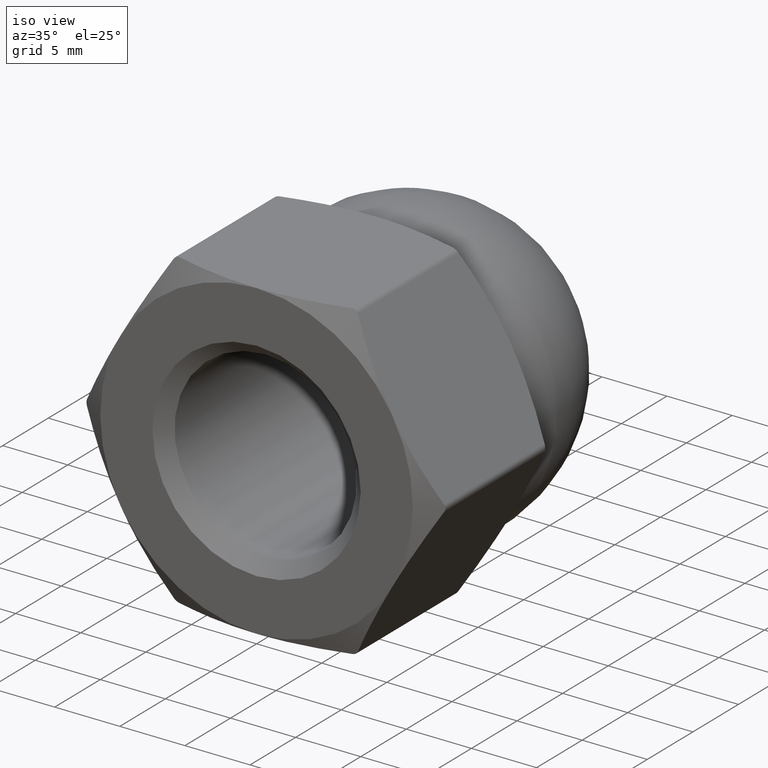
[diagram: clean part render]
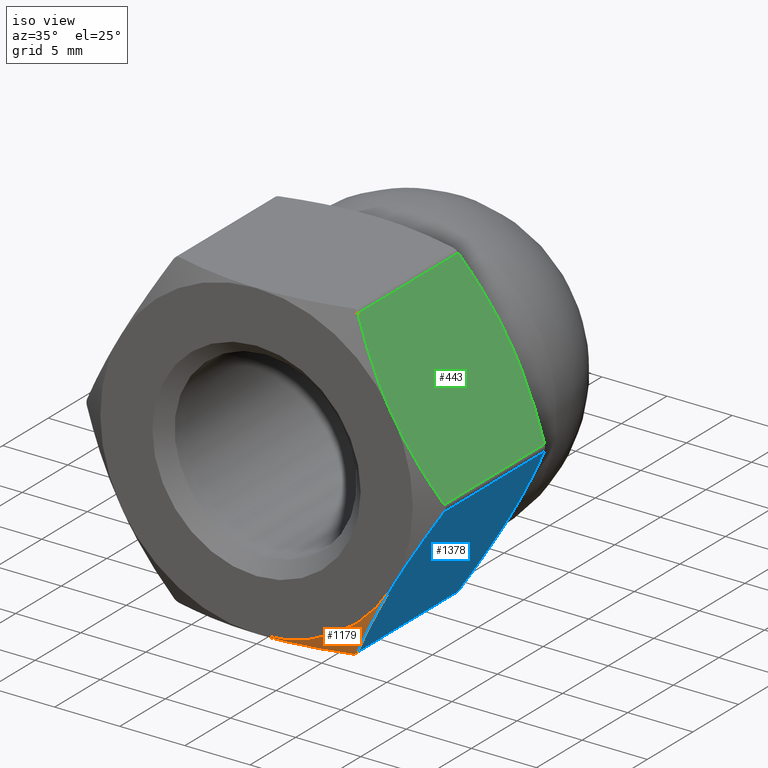
[diagram: same view with three faces highlighted in distinct colors, each labeled with its STEP entity id]
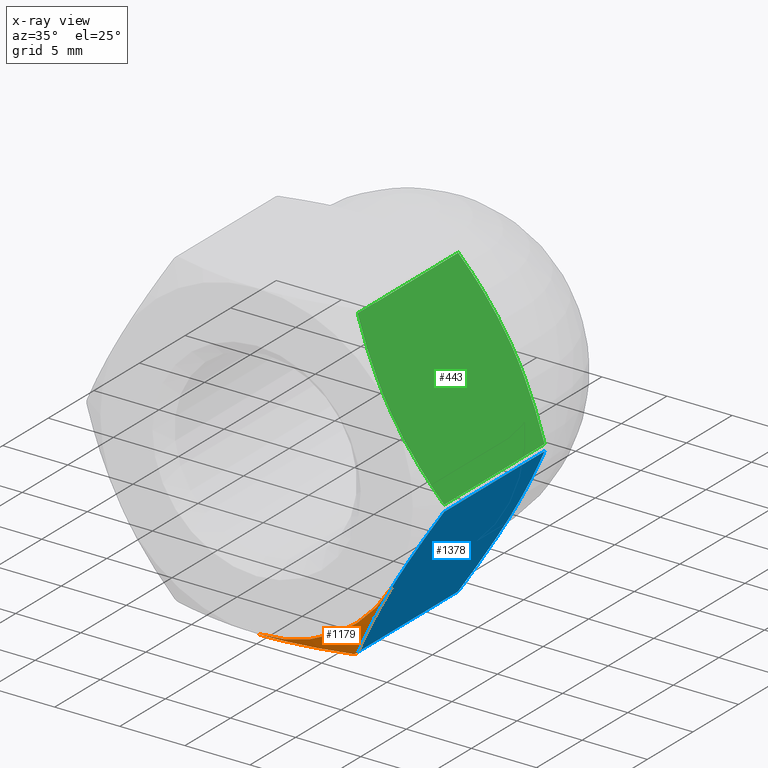
[diagram: x-ray of the same camera — body ghosted, the three highlighted faces saturated]
A machine part, iso view with three faces highlighted in distinct colors.
The next image is the same camera in x-ray (body ghosted, the three faces saturated) — at least one of them is partly hidden behind the body in this view.
Their STEP definitions:

[orange] entity #1179 — the highlighted conical surface has half-angle 60 deg.
#12 = CARTESIAN_POINT ( 'NONE',  ( 5.564852187614549800, 0.6893936322554055100, -12.00000000000000500 ) ) ;
#78 = CIRCLE ( 'NONE', #233, 12.00000000000000200 ) ;
#83 = CARTESIAN_POINT ( 'NONE',  ( 7.615867869546742800, 0.6860455640991240900, -10.80892990621369200 ) ) ;
#130 = CARTESIAN_POINT ( 'NONE',  ( 7.072540797572896700, 0.9897791165376161900, -11.75000000000002100 ) ) ;
#193 = CARTESIAN_POINT ( 'NONE',  ( 7.029609111663672700, 1.013779013001466800, -11.82435986124937700 ) ) ;
#194 = CARTESIAN_POINT ( 'NONE',  ( 7.072540797572896700, 0.9897791165376161900, -11.75000000000002100 ) ) ;
#230 = CARTESIAN_POINT ( 'NONE',  ( 4.476170215682657300, 0.4405454564966949100, -12.00000000000000200 ) ) ;
#233 = AXIS2_PLACEMENT_3D ( 'NONE', #584, #1329, #1203 ) ;
#235 = DIRECTION ( 'NONE',  ( -0.0000000000000000000, 1.000000000000000000, -0.0000000000000000000 ) ) ;
#272 = B_SPLINE_CURVE_WITH_KNOTS ( 'NONE', 3,
 ( #194, #83, #1140, #927, #299, #513 ),
 .UNSPECIFIED., .F., .F.,
 ( 4, 2, 4 ),
 ( 0.0002976420579480877700, 0.003654043546377617200, 0.007010445034807147300 ),
 .UNSPECIFIED. ) ;
#285 = CARTESIAN_POINT ( 'NONE',  ( 6.725359445022282200, 1.013770062314893500, -12.00000000000000200 ) ) ;
#299 = CARTESIAN_POINT ( 'NONE',  ( 9.827162648512390000, -1.008646833590420800E-014, -6.978854998533403600 ) ) ;
#320 = CARTESIAN_POINT ( 'NONE',  ( 2.250940326994609600, 0.1134534228778148600, -12.00000000000000000 ) ) ;
#340 = ORIENTED_EDGE ( 'NONE', *, *, #408, .T. ) ;
#380 = CARTESIAN_POINT ( 'NONE',  ( 10.39230484541326400, 0.0000000000000000000, -6.000000000000004400 ) ) ;
#395 = ORIENTED_EDGE ( 'NONE', *, *, #705, .F. ) ;
#399 = CARTESIAN_POINT ( 'NONE',  ( 6.639528095680694800, 0.9897791165376106400, -12.00000000000000000 ) ) ;
#408 = EDGE_CURVE ( 'NONE', #769, #1208, #539, .T. ) ;
#477 = ORIENTED_EDGE ( 'NONE', *, *, #761, .T. ) ;
#513 = CARTESIAN_POINT ( 'NONE',  ( 10.39230484541326400, 0.0000000000000000000, -6.000000000000004400 ) ) ;
#516 = VERTEX_POINT ( 'NONE', #130 ) ;
#518 = B_SPLINE_CURVE_WITH_KNOTS ( 'NONE', 3,
 ( #399, #285, #604, #1031, #193, #1034 ),
 .UNSPECIFIED., .F., .F.,
 ( 4, 2, 4 ),
 ( 3.529906531158615100E-018, 0.0002638430375139575900, 0.0005276860750279117000 ),
 .UNSPECIFIED. ) ;
#539 = B_SPLINE_CURVE_WITH_KNOTS ( 'NONE', 3,
 ( #648, #751, #1164, #320, #737, #230, #12, #1158 ),
 .UNSPECIFIED., .F., .F.,
 ( 4, 2, 2, 4 ),
 ( 0.01936970057594182200, 0.02104774807343688700, 0.02272579557093195500, 0.02608189056592208300 ),
 .UNSPECIFIED. ) ;
#584 = CARTESIAN_POINT ( 'NONE',  ( 0.0000000000000000000, 0.0000000000000000000, 0.0000000000000000000 ) ) ;
#604 = CARTESIAN_POINT ( 'NONE',  ( 6.812782701786536800, 1.027094147785106800, -11.97722948395740000 ) ) ;
#630 = VERTEX_POINT ( 'NONE', #380 ) ;
#648 = CARTESIAN_POINT ( 'NONE',  ( -1.502314598737160000E-015, 0.0000000000000000000, -12.00000000000000200 ) ) ;
#705 = EDGE_CURVE ( 'NONE', #769, #630, #78, .T. ) ;
#737 = CARTESIAN_POINT ( 'NONE',  ( 2.812232842606247700, 0.1810271902809779100, -12.00000000000000200 ) ) ;
#751 = CARTESIAN_POINT ( 'NONE',  ( 0.5605972413833048000, -1.554023113895890100E-015, -12.00000000000000200 ) ) ;
#758 = CARTESIAN_POINT ( 'NONE',  ( 0.0000000000000000000, 1.071796769724475000, 0.0000000000000000000 ) ) ;
#761 = EDGE_CURVE ( 'NONE', #1208, #516, #518, .T. ) ;
#769 = VERTEX_POINT ( 'NONE', #890 ) ;
#841 = CONICAL_SURFACE ( 'NONE', #1018, 13.85640646055101900, 1.047197551196603800 ) ;
#864 = DIRECTION ( 'NONE',  ( 0.0000000000000000000, 0.0000000000000000000, -1.000000000000000000 ) ) ;
#869 = CARTESIAN_POINT ( 'NONE',  ( 6.639528095680694800, 0.9897791165376106400, -12.00000000000000000 ) ) ;
#876 = EDGE_LOOP ( 'NONE', ( #340, #477, #1293, #395 ) ) ;
#890 = CARTESIAN_POINT ( 'NONE',  ( -1.502314598737160000E-015, 0.0000000000000000000, -12.00000000000000200 ) ) ;
#927 = CARTESIAN_POINT ( 'NONE',  ( 9.268740651451430800, 0.09356582542160188400, -7.946070269507060000 ) ) ;
#1006 = FACE_OUTER_BOUND ( 'NONE', #876, .T. ) ;
#1018 = AXIS2_PLACEMENT_3D ( 'NONE', #758, #235, #864 ) ;
#1031 = CARTESIAN_POINT ( 'NONE',  ( 6.965490637025080600, 1.027182766975820400, -11.88924742842495300 ) ) ;
#1034 = CARTESIAN_POINT ( 'NONE',  ( 7.072540797572896700, 0.9897791165376161900, -11.75000000000002100 ) ) ;
#1140 = CARTESIAN_POINT ( 'NONE',  ( 8.163129901979239400, 0.4370987489728677700, -9.861044260987201300 ) ) ;
#1158 = CARTESIAN_POINT ( 'NONE',  ( 6.639528095680694800, 0.9897791165376106400, -12.00000000000000000 ) ) ;
#1164 = CARTESIAN_POINT ( 'NONE',  ( 1.122912357192196000, 0.02279154430987167700, -12.00000000000000000 ) ) ;
#1179 = ADVANCED_FACE ( 'NONE', ( #1006 ), #841, .T. ) ;
#1203 = DIRECTION ( 'NONE',  ( 0.0000000000000000000, 0.0000000000000000000, -1.000000000000000000 ) ) ;
#1208 = VERTEX_POINT ( 'NONE', #869 ) ;
#1293 = ORIENTED_EDGE ( 'NONE', *, *, #1366, .T. ) ;
#1329 = DIRECTION ( 'NONE',  ( 0.0000000000000000000, -1.000000000000000000, 0.0000000000000000000 ) ) ;
#1366 = EDGE_CURVE ( 'NONE', #516, #630, #272, .T. ) ;

[blue] entity #1378 — the highlighted planar face has unit normal (-0.866, 0, 0.5).
#30 = ORIENTED_EDGE ( 'NONE', *, *, #657, .T. ) ;
#38 = CARTESIAN_POINT ( 'NONE',  ( 10.39230484541326400, 13.00000000000000000, -6.000000000000004400 ) ) ;
#43 = VECTOR ( 'NONE', #899, 1000.000000000000000 ) ;
#48 = CARTESIAN_POINT ( 'NONE',  ( 10.95744704231412900, 13.00000000000000900, -5.021145001466601700 ) ) ;
#56 = CARTESIAN_POINT ( 'NONE',  ( 8.990347189129828100, 12.82002802009278000, -8.428261890743083700 ) ) ;
#60 = CARTESIAN_POINT ( 'NONE',  ( 13.71206889325361000, 13.00000000000000000, -0.2500000000000005000 ) ) ;
#83 = CARTESIAN_POINT ( 'NONE',  ( 7.615867869546742800, 0.6860455640991240900, -10.80892990621369200 ) ) ;
#88 = CARTESIAN_POINT ( 'NONE',  ( 10.39230484541326400, 0.0000000000000000000, -6.000000000000004400 ) ) ;
#92 = CARTESIAN_POINT ( 'NONE',  ( 10.95658457648177900, 0.02321187332249741200, -5.022638836108027000 ) ) ;
#115 = EDGE_CURVE ( 'NONE', #750, #911, #370, .T. ) ;
#130 = CARTESIAN_POINT ( 'NONE',  ( 7.072540797572896700, 0.9897791165376161900, -11.75000000000002100 ) ) ;
#162 = CARTESIAN_POINT ( 'NONE',  ( 10.11082040635886900, 13.00000000000001100, -6.487545349982230600 ) ) ;
#163 = CARTESIAN_POINT ( 'NONE',  ( 7.072540797572910000, 12.01022088346239000, -11.74999999999999800 ) ) ;
#171 = EDGE_LOOP ( 'NONE', ( #1254, #30, #363, #1096, #913, #1039 ) ) ;
#180 = CARTESIAN_POINT ( 'NONE',  ( 8.161051184807723400, 12.56206301313893200, -9.864644704742834900 ) ) ;
#189 = EDGE_CURVE ( 'NONE', #911, #617, #774, .T. ) ;
#194 = CARTESIAN_POINT ( 'NONE',  ( 7.072540797572896700, 0.9897791165376161900, -11.75000000000002100 ) ) ;
#214 = CARTESIAN_POINT ( 'NONE',  ( 13.17005630627445700, 0.6867803944023982400, -1.188793338989742300 ) ) ;
#262 = CARTESIAN_POINT ( 'NONE',  ( 11.51586903937508000, 12.90643417457839200, -4.053929730492941800 ) ) ;
#272 = B_SPLINE_CURVE_WITH_KNOTS ( 'NONE', 3,
 ( #194, #83, #1140, #927, #299, #513 ),
 .UNSPECIFIED., .F., .F.,
 ( 4, 2, 4 ),
 ( 0.0002976420579480877700, 0.003654043546377617200, 0.007010445034807147300 ),
 .UNSPECIFIED. ) ;
#289 = EDGE_CURVE ( 'NONE', #750, #1065, #461, .T. ) ;
#297 = CARTESIAN_POINT ( 'NONE',  ( 7.072540797572910000, 12.01022088346239000, -11.74999999999999800 ) ) ;
#299 = CARTESIAN_POINT ( 'NONE',  ( 9.827162648512390000, -1.008646833590420800E-014, -6.978854998533403600 ) ) ;
#301 = FACE_OUTER_BOUND ( 'NONE', #171, .T. ) ;
#303 = DIRECTION ( 'NONE',  ( 0.5000000000000002200, 0.0000000000000000000, 0.8660254037844384900 ) ) ;
#325 = CARTESIAN_POINT ( 'NONE',  ( 10.67378928446761500, -1.040579975701907700E-014, -5.512454650017829700 ) ) ;
#339 = LINE ( 'NONE', #489, #43 ) ;
#363 = ORIENTED_EDGE ( 'NONE', *, *, #189, .F. ) ;
#369 = CARTESIAN_POINT ( 'NONE',  ( 13.71206889325362300, 12.01022088346238100, -0.2499999999999792900 ) ) ;
#370 = B_SPLINE_CURVE_WITH_KNOTS ( 'NONE', 3,
 ( #369, #1314, #882, #262, #48, #487 ),
 .UNSPECIFIED., .F., .F.,
 ( 4, 2, 4 ),
 ( 0.0002976420579480840800, 0.003654043546377615100, 0.007010445034807147300 ),
 .UNSPECIFIED. ) ;
#380 = CARTESIAN_POINT ( 'NONE',  ( 10.39230484541326400, 0.0000000000000000000, -6.000000000000004400 ) ) ;
#403 = B_SPLINE_CURVE_WITH_KNOTS ( 'NONE', 3,
 ( #88, #325, #92, #624, #1141, #1040, #214, #1162 ),
 .UNSPECIFIED., .F., .F.,
 ( 4, 2, 2, 4 ),
 ( 0.007010445034807147300, 0.008682192066603335700, 0.01035393909839952400, 0.01369743316199190100 ),
 .UNSPECIFIED. ) ;
#461 = LINE ( 'NONE', #60, #860 ) ;
#462 = CARTESIAN_POINT ( 'NONE',  ( 13.71206889325324400, 0.9897791165374056900, -0.2500000000006350500 ) ) ;
#487 = CARTESIAN_POINT ( 'NONE',  ( 10.39230484541326400, 13.00000000000000000, -6.000000000000004400 ) ) ;
#489 = CARTESIAN_POINT ( 'NONE',  ( 7.072540797572910900, 13.00000000000000000, -11.74999999999999800 ) ) ;
#513 = CARTESIAN_POINT ( 'NONE',  ( 10.39230484541326400, 0.0000000000000000000, -6.000000000000004400 ) ) ;
#516 = VERTEX_POINT ( 'NONE', #130 ) ;
#610 = DIRECTION ( 'NONE',  ( -0.8660254037844386000, 0.0000000000000000000, 0.5000000000000003300 ) ) ;
#617 = VERTEX_POINT ( 'NONE', #163 ) ;
#624 = CARTESIAN_POINT ( 'NONE',  ( 11.51623569666494300, 0.1132396048635532400, -4.053294661437945500 ) ) ;
#630 = VERTEX_POINT ( 'NONE', #380 ) ;
#657 = EDGE_CURVE ( 'NONE', #516, #617, #339, .T. ) ;
#692 = CARTESIAN_POINT ( 'NONE',  ( 13.71206889325362300, 12.01022088346238100, -0.2499999999999792900 ) ) ;
#695 = CARTESIAN_POINT ( 'NONE',  ( 7.614553384551759200, 12.31321960559746000, -10.81120666101079300 ) ) ;
#750 = VERTEX_POINT ( 'NONE', #692 ) ;
#774 = B_SPLINE_CURVE_WITH_KNOTS ( 'NONE', 3,
 ( #38, #162, #1005, #802, #56, #180, #695, #297 ),
 .UNSPECIFIED., .F., .F.,
 ( 4, 2, 2, 4 ),
 ( 0.007010445034807147300, 0.008682192066603523100, 0.01035393909839989700, 0.01369743316199265000 ),
 .UNSPECIFIED. ) ;
#802 = CARTESIAN_POINT ( 'NONE',  ( 9.268373994161443400, 12.88676039513641700, -7.946705338562272100 ) ) ;
#815 = CARTESIAN_POINT ( 'NONE',  ( 13.85640646055101600, 13.00000000000000000, -2.527601937510759600E-015 ) ) ;
#823 = CARTESIAN_POINT ( 'NONE',  ( 10.39230484541326400, 13.00000000000000000, -6.000000000000004400 ) ) ;
#860 = VECTOR ( 'NONE', #914, 1000.000000000000000 ) ;
#874 = AXIS2_PLACEMENT_3D ( 'NONE', #815, #610, #303 ) ;
#882 = CARTESIAN_POINT ( 'NONE',  ( 12.62147978884728200, 12.56290125102713200, -2.138955739012800000 ) ) ;
#899 = DIRECTION ( 'NONE',  ( -0.0000000000000000000, 1.000000000000000000, -0.0000000000000000000 ) ) ;
#911 = VERTEX_POINT ( 'NONE', #823 ) ;
#913 = ORIENTED_EDGE ( 'NONE', *, *, #289, .T. ) ;
#914 = DIRECTION ( 'NONE',  ( 0.0000000000000000000, -1.000000000000000000, 0.0000000000000000000 ) ) ;
#927 = CARTESIAN_POINT ( 'NONE',  ( 9.268740651451430800, 0.09356582542160188400, -7.946070269507060000 ) ) ;
#965 = EDGE_CURVE ( 'NONE', #630, #1065, #403, .T. ) ;
#1005 = CARTESIAN_POINT ( 'NONE',  ( 9.828025114344676200, 12.97678812667749800, -6.977361163892085800 ) ) ;
#1029 = PLANE ( 'NONE',  #874 ) ;
#1039 = ORIENTED_EDGE ( 'NONE', *, *, #965, .F. ) ;
#1040 = CARTESIAN_POINT ( 'NONE',  ( 12.62355850601854900, 0.4379369868609758200, -2.135355295257594900 ) ) ;
#1065 = VERTEX_POINT ( 'NONE', #462 ) ;
#1096 = ORIENTED_EDGE ( 'NONE', *, *, #115, .F. ) ;
#1140 = CARTESIAN_POINT ( 'NONE',  ( 8.163129901979239400, 0.4370987489728677700, -9.861044260987201300 ) ) ;
#1141 = CARTESIAN_POINT ( 'NONE',  ( 11.79426250169653100, 0.1799719799071809200, -3.571738109257188500 ) ) ;
#1162 = CARTESIAN_POINT ( 'NONE',  ( 13.71206889325324400, 0.9897791165374056900, -0.2500000000006350500 ) ) ;
#1254 = ORIENTED_EDGE ( 'NONE', *, *, #1366, .F. ) ;
#1314 = CARTESIAN_POINT ( 'NONE',  ( 13.16874182127977700, 12.31395443590087700, -1.191070093786311700 ) ) ;
#1366 = EDGE_CURVE ( 'NONE', #516, #630, #272, .T. ) ;
#1378 = ADVANCED_FACE ( 'NONE', ( #301 ), #1029, .F. ) ;

[green] entity #443 — the highlighted planar face has unit normal (-0.866, 0, -0.5).
#11 = VERTEX_POINT ( 'NONE', #935 ) ;
#18 = EDGE_CURVE ( 'NONE', #1013, #1126, #65, .T. ) ;
#45 = CARTESIAN_POINT ( 'NONE',  ( 7.614553384552055000, 0.6867803944024046800, 10.81120666101028100 ) ) ;
#65 = B_SPLINE_CURVE_WITH_KNOTS ( 'NONE', 3,
 ( #309, #415, #1143, #521, #1249, #203 ),
 .UNSPECIFIED., .F., .F.,
 ( 4, 2, 4 ),
 ( 0.0002976420579480877700, 0.003654043546377619400, 0.007010445034807151600 ),
 .UNSPECIFIED. ) ;
#70 = CARTESIAN_POINT ( 'NONE',  ( 10.95658457648184300, 12.97678812667749600, 5.022638836107913300 ) ) ;
#112 = B_SPLINE_CURVE_WITH_KNOTS ( 'NONE', 3,
 ( #511, #1237, #70, #1231, #505, #286, #905, #1127 ),
 .UNSPECIFIED., .F., .F.,
 ( 4, 2, 2, 4 ),
 ( 0.007010445034807151600, 0.008682192066603528300, 0.01035393909839990400, 0.01369743316199265400 ),
 .UNSPECIFIED. ) ;
#127 = DIRECTION ( 'NONE',  ( -0.4999999999999998900, 0.0000000000000000000, 0.8660254037844387100 ) ) ;
#141 = DIRECTION ( 'NONE',  ( -0.8660254037844387100, 0.0000000000000000000, -0.4999999999999998900 ) ) ;
#150 = CARTESIAN_POINT ( 'NONE',  ( 10.11082040635890200, -9.757819552369536800E-015, 6.487545349982173800 ) ) ;
#155 = CARTESIAN_POINT ( 'NONE',  ( 10.39230484541326800, 0.0000000000000000000, 5.999999999999999100 ) ) ;
#169 = ORIENTED_EDGE ( 'NONE', *, *, #570, .F. ) ;
#184 = CARTESIAN_POINT ( 'NONE',  ( 7.072540797573265300, 0.9897791165374141300, 11.74999999999939200 ) ) ;
#185 = VECTOR ( 'NONE', #209, 1000.000000000000000 ) ;
#191 = ORIENTED_EDGE ( 'NONE', *, *, #562, .T. ) ;
#203 = CARTESIAN_POINT ( 'NONE',  ( 10.39230484541326800, 13.00000000000000000, 5.999999999999999100 ) ) ;
#209 = DIRECTION ( 'NONE',  ( -0.0000000000000000000, 1.000000000000000000, -0.0000000000000000000 ) ) ;
#211 = EDGE_CURVE ( 'NONE', #1126, #678, #112, .T. ) ;
#216 = CARTESIAN_POINT ( 'NONE',  ( 13.16874182127977600, 0.6860455640991244300, 1.191070093786309700 ) ) ;
#255 = LINE ( 'NONE', #1359, #185 ) ;
#267 = CARTESIAN_POINT ( 'NONE',  ( 8.161051184807963200, 0.4379369868609805400, 9.864644704742424600 ) ) ;
#286 = CARTESIAN_POINT ( 'NONE',  ( 12.62355850601880500, 12.56206301313893400, 2.135355295257162800 ) ) ;
#309 = CARTESIAN_POINT ( 'NONE',  ( 7.072540797572902000, 12.01022088346238100, 11.75000000000002100 ) ) ;
#321 = B_SPLINE_CURVE_WITH_KNOTS ( 'NONE', 3,
 ( #155, #150, #997, #1108, #784, #267, #45, #599 ),
 .UNSPECIFIED., .F., .F.,
 ( 4, 2, 2, 4 ),
 ( 0.007010445034807147300, 0.008682192066603342700, 0.01035393909839954000, 0.01369743316199193200 ),
 .UNSPECIFIED. ) ;
#332 = CARTESIAN_POINT ( 'NONE',  ( 10.95744704231413300, -9.588412962918679800E-015, 5.021145001466598100 ) ) ;
#389 = DIRECTION ( 'NONE',  ( 0.0000000000000000000, -1.000000000000000000, 0.0000000000000000000 ) ) ;
#415 = CARTESIAN_POINT ( 'NONE',  ( 7.615867869546748100, 12.31395443590087200, 10.80892990621368500 ) ) ;
#418 = EDGE_CURVE ( 'NONE', #563, #11, #1160, .T. ) ;
#443 = ADVANCED_FACE ( 'NONE', ( #1188 ), #773, .F. ) ;
#505 = CARTESIAN_POINT ( 'NONE',  ( 11.79426250169669300, 12.82002802009278100, 3.571738109256913600 ) ) ;
#511 = CARTESIAN_POINT ( 'NONE',  ( 10.39230484541326800, 13.00000000000000000, 5.999999999999999100 ) ) ;
#521 = CARTESIAN_POINT ( 'NONE',  ( 9.268740651451434300, 12.90643417457839700, 7.946070269507056400 ) ) ;
#562 = EDGE_CURVE ( 'NONE', #1013, #946, #995, .T. ) ;
#563 = VERTEX_POINT ( 'NONE', #799 ) ;
#570 = EDGE_CURVE ( 'NONE', #11, #946, #321, .T. ) ;
#582 = CARTESIAN_POINT ( 'NONE',  ( 6.928203230275507900, 13.00000000000000000, 12.00000000000000000 ) ) ;
#599 = CARTESIAN_POINT ( 'NONE',  ( 7.072540797573265300, 0.9897791165374141300, 11.74999999999939200 ) ) ;
#633 = CARTESIAN_POINT ( 'NONE',  ( 7.072540797572902000, 12.01022088346238100, 11.75000000000002100 ) ) ;
#646 = CARTESIAN_POINT ( 'NONE',  ( 10.39230484541326800, 13.00000000000000000, 5.999999999999999100 ) ) ;
#678 = VERTEX_POINT ( 'NONE', #793 ) ;
#773 = PLANE ( 'NONE',  #1333 ) ;
#784 = CARTESIAN_POINT ( 'NONE',  ( 8.990347189129982700, 0.1799719799071833300, 8.428261890742822600 ) ) ;
#789 = CARTESIAN_POINT ( 'NONE',  ( 7.072540797572914400, 13.00000000000000000, 11.75000000000000000 ) ) ;
#793 = CARTESIAN_POINT ( 'NONE',  ( 13.71206889325360800, 12.01022088346239000, 0.2499999999999987000 ) ) ;
#799 = CARTESIAN_POINT ( 'NONE',  ( 13.71206889325362100, 0.9897791165376168500, 0.2499999999999770700 ) ) ;
#816 = ORIENTED_EDGE ( 'NONE', *, *, #211, .F. ) ;
#856 = CARTESIAN_POINT ( 'NONE',  ( 13.71206889325362100, 0.9897791165376168500, 0.2499999999999770700 ) ) ;
#905 = CARTESIAN_POINT ( 'NONE',  ( 13.17005630627476400, 12.31321960559746000, 1.188793338989206700 ) ) ;
#921 = VECTOR ( 'NONE', #389, 1000.000000000000000 ) ;
#935 = CARTESIAN_POINT ( 'NONE',  ( 10.39230484541326800, 0.0000000000000000000, 5.999999999999999100 ) ) ;
#946 = VERTEX_POINT ( 'NONE', #184 ) ;
#955 = CARTESIAN_POINT ( 'NONE',  ( 11.51586903937509000, 0.09356582542160249400, 4.053929730492938300 ) ) ;
#995 = LINE ( 'NONE', #789, #921 ) ;
#996 = ORIENTED_EDGE ( 'NONE', *, *, #1016, .T. ) ;
#997 = CARTESIAN_POINT ( 'NONE',  ( 9.828025114344743700, 0.02321187332249810200, 6.977361163891978400 ) ) ;
#1013 = VERTEX_POINT ( 'NONE', #633 ) ;
#1016 = EDGE_CURVE ( 'NONE', #563, #678, #255, .T. ) ;
#1028 = ORIENTED_EDGE ( 'NONE', *, *, #18, .F. ) ;
#1066 = CARTESIAN_POINT ( 'NONE',  ( 10.39230484541326800, 0.0000000000000000000, 5.999999999999999100 ) ) ;
#1108 = CARTESIAN_POINT ( 'NONE',  ( 9.268373994161571300, 0.1132396048635548600, 7.946705338562064300 ) ) ;
#1126 = VERTEX_POINT ( 'NONE', #646 ) ;
#1127 = CARTESIAN_POINT ( 'NONE',  ( 13.71206889325360800, 12.01022088346239000, 0.2499999999999987000 ) ) ;
#1143 = CARTESIAN_POINT ( 'NONE',  ( 8.163129901979244700, 12.56290125102713000, 9.861044260987203100 ) ) ;
#1160 = B_SPLINE_CURVE_WITH_KNOTS ( 'NONE', 3,
 ( #856, #216, #1269, #955, #332, #1066 ),
 .UNSPECIFIED., .F., .F.,
 ( 4, 2, 4 ),
 ( 0.0002976420579480876600, 0.003654043546377617200, 0.007010445034807147300 ),
 .UNSPECIFIED. ) ;
#1188 = FACE_OUTER_BOUND ( 'NONE', #1323, .T. ) ;
#1223 = ORIENTED_EDGE ( 'NONE', *, *, #418, .F. ) ;
#1231 = CARTESIAN_POINT ( 'NONE',  ( 11.51623569666507600, 12.88676039513641800, 4.053294661437723400 ) ) ;
#1237 = CARTESIAN_POINT ( 'NONE',  ( 10.67378928446765800, 13.00000000000001100, 5.512454650017767600 ) ) ;
#1249 = CARTESIAN_POINT ( 'NONE',  ( 9.827162648512393500, 13.00000000000001100, 6.978854998533398300 ) ) ;
#1269 = CARTESIAN_POINT ( 'NONE',  ( 12.62147978884728200, 0.4370987489728684300, 2.138955739012798200 ) ) ;
#1323 = EDGE_LOOP ( 'NONE', ( #1223, #996, #816, #1028, #191, #169 ) ) ;
#1333 = AXIS2_PLACEMENT_3D ( 'NONE', #582, #141, #127 ) ;
#1359 = CARTESIAN_POINT ( 'NONE',  ( 13.71206889325361000, 13.00000000000000000, 0.2499999999999967500 ) ) ;